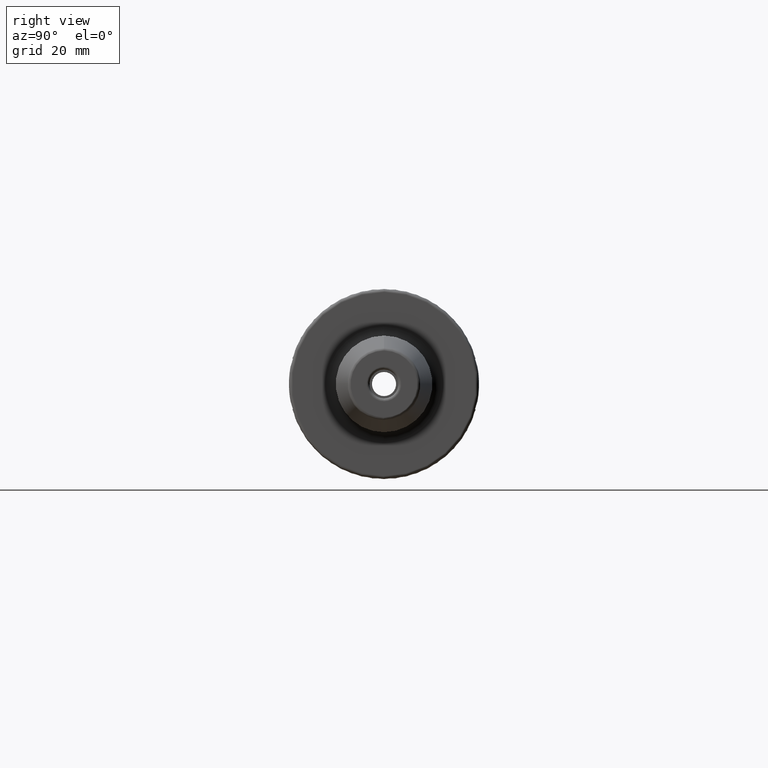
[diagram: clean part render]
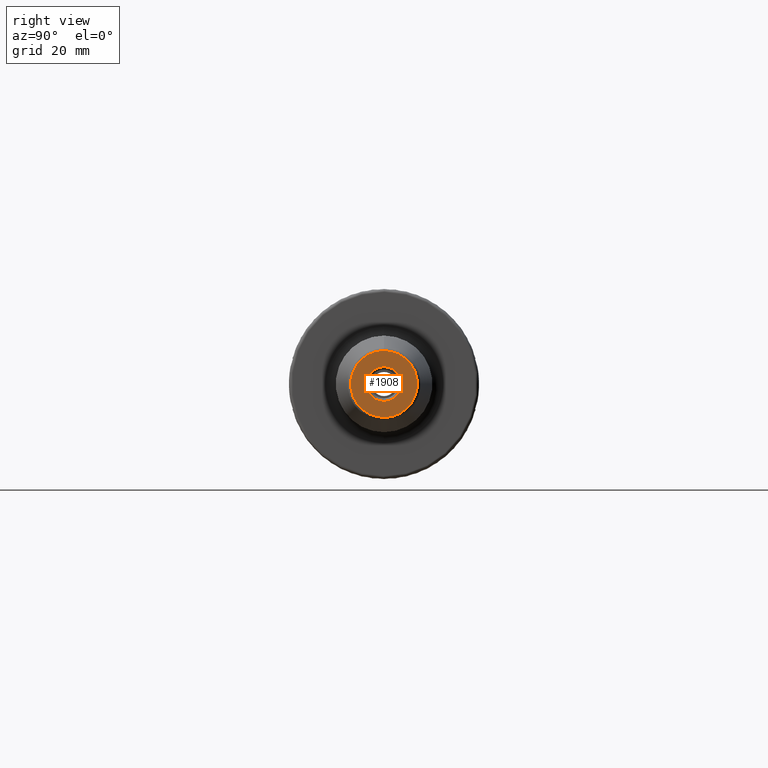
[diagram: same view with one face highlighted and labeled with its STEP entity id]
A machine part, right view. The second image highlights one B-rep face of the part: STEP entity #1908.
In plain terms, the highlighted planar face has unit normal (1, 0, 0).
Its self-contained STEP definition (entity closure, byte-faithful):
#410=CARTESIAN_POINT('',(1.6E2,0.E0,0.E0));
#411=DIRECTION('',(-1.E0,0.E0,0.E0));
#412=DIRECTION('',(0.E0,0.E0,-1.E0));
#413=AXIS2_PLACEMENT_3D('',#410,#411,#412);
#415=CARTESIAN_POINT('',(1.6E2,0.E0,0.E0));
#416=DIRECTION('',(1.E0,0.E0,0.E0));
#417=DIRECTION('',(0.E0,0.E0,-1.E0));
#418=AXIS2_PLACEMENT_3D('',#415,#416,#417);
#420=CARTESIAN_POINT('',(1.6E2,0.E0,0.E0));
#421=DIRECTION('',(1.E0,0.E0,0.E0));
#422=DIRECTION('',(0.E0,0.E0,-1.E0));
#423=AXIS2_PLACEMENT_3D('',#420,#421,#422);
#435=CARTESIAN_POINT('',(1.6E2,0.E0,0.E0));
#436=DIRECTION('',(-1.E0,0.E0,0.E0));
#437=DIRECTION('',(0.E0,0.E0,-1.E0));
#438=AXIS2_PLACEMENT_3D('',#435,#436,#437);
#1221=CARTESIAN_POINT('',(1.6E2,0.E0,-5.762500000001E0));
#1222=VERTEX_POINT('',#1221);
#1223=CARTESIAN_POINT('',(1.6E2,0.E0,-1.107560950834E1));
#1225=VERTEX_POINT('',#1223);
#1251=CARTESIAN_POINT('',(1.6E2,0.E0,5.762500000001E0));
#1252=VERTEX_POINT('',#1251);
#1253=CARTESIAN_POINT('',(1.6E2,0.E0,1.107560950834E1));
#1255=VERTEX_POINT('',#1253);
#1893=CARTESIAN_POINT('',(1.6E2,0.E0,0.E0));
#1894=DIRECTION('',(1.E0,0.E0,0.E0));
#1895=DIRECTION('',(0.E0,0.E0,1.E0));
#1896=AXIS2_PLACEMENT_3D('',#1893,#1894,#1895);
#1897=PLANE('',#1896);
#1899=ORIENTED_EDGE('',*,*,#1898,.F.);
#1901=ORIENTED_EDGE('',*,*,#1900,.T.);
#1902=EDGE_LOOP('',(#1899,#1901));
#1903=FACE_OUTER_BOUND('',#1902,.F.);
#1904=ORIENTED_EDGE('',*,*,#1872,.F.);
#1905=ORIENTED_EDGE('',*,*,#1888,.T.);
#1906=EDGE_LOOP('',(#1904,#1905));
#1907=FACE_BOUND('',#1906,.F.);
#1908=ADVANCED_FACE('',(#1903,#1907),#1897,.T.);
#414=CIRCLE('',#413,5.762500000001E0);
#419=CIRCLE('',#418,5.762500000001E0);
#424=CIRCLE('',#423,1.107560950834E1);
#439=CIRCLE('',#438,1.107560950834E1);
#1872=EDGE_CURVE('',#1222,#1252,#414,.T.);
#1888=EDGE_CURVE('',#1222,#1252,#419,.T.);
#1898=EDGE_CURVE('',#1225,#1255,#424,.T.);
#1900=EDGE_CURVE('',#1225,#1255,#439,.T.);